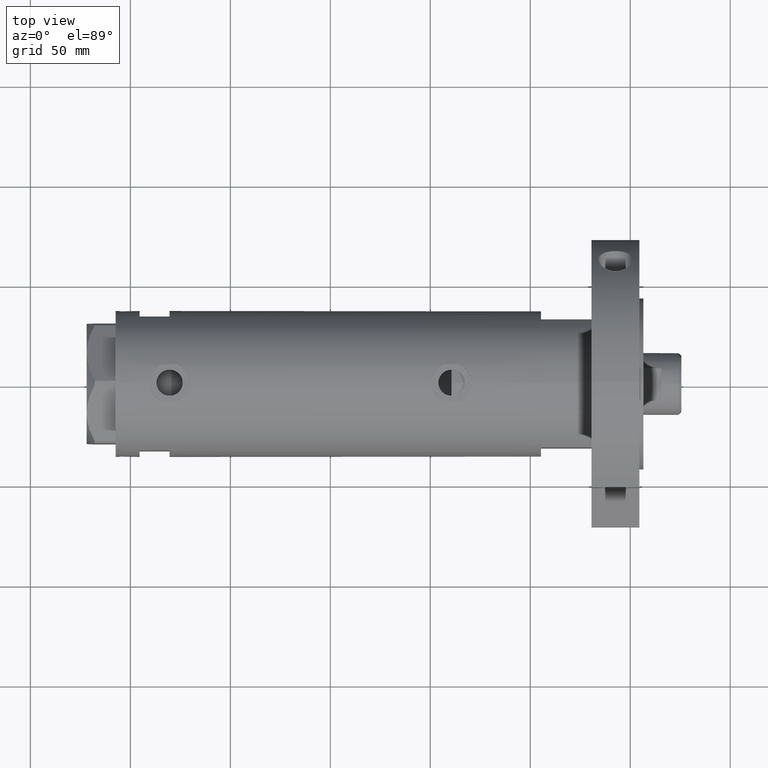
[diagram: clean part render]
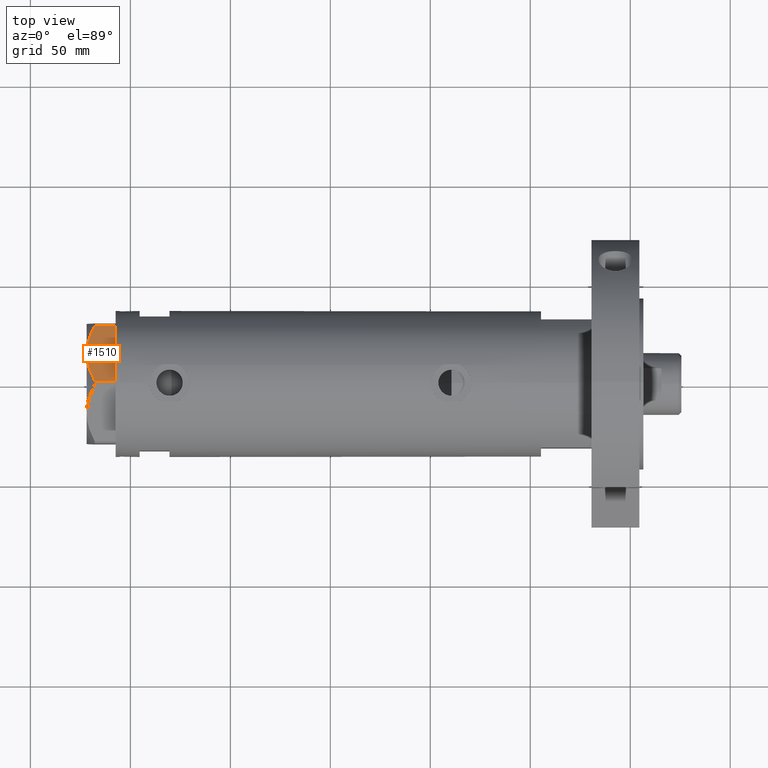
[diagram: same view with one face highlighted and labeled with its STEP entity id]
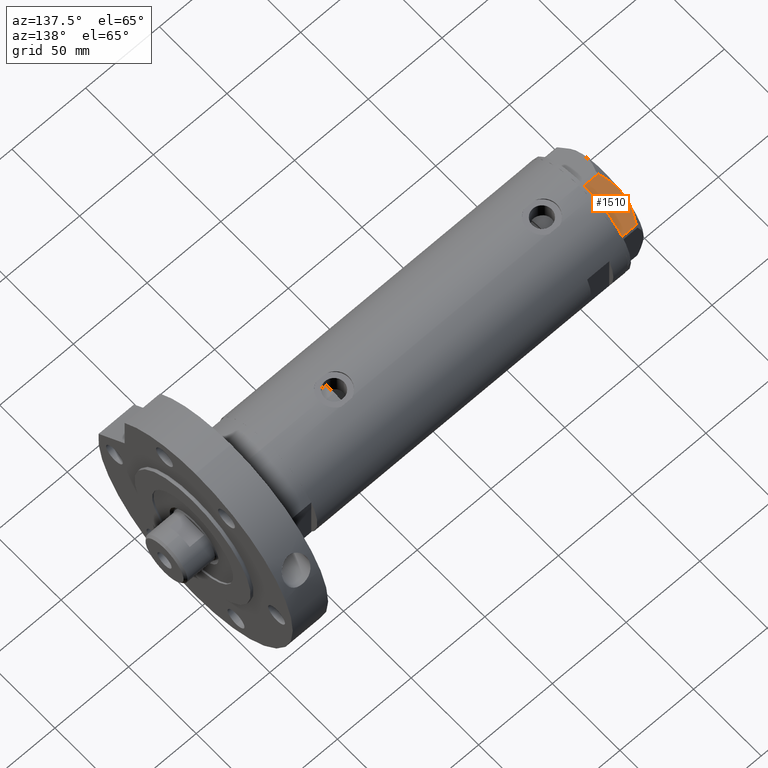
[diagram: same view with one face highlighted and labeled with its STEP entity id]
A machine part, top view. The second image highlights one B-rep face of the part: STEP entity #1510.
A second angle (auxiliary view) of the same face is appended — the face is thin or edge-on in the first view.
In plain terms, the highlighted planar face has unit normal (-0, -0.5, -0.866).
Its self-contained STEP definition (entity closure, byte-faithful):
#209 = CARTESIAN_POINT ( 'NONE',  ( 5.430403497542005020, -31.50577123026336679, 12.63511531451933045 ) ) ;
#577 = FACE_OUTER_BOUND ( 'NONE', #5027, .T. ) ;
#613 = ORIENTED_EDGE ( 'NONE', *, *, #3899, .F. ) ;
#638 = CARTESIAN_POINT ( 'NONE',  ( 14.99999999999998757, -25.98076211353316722, 14.50000000000000000 ) ) ;
#640 = DIRECTION ( 'NONE',  ( 0.8660254037844389297, 0.4999999999999996114, 0.000000000000000000 ) ) ;
#789 = CARTESIAN_POINT ( 'NONE',  ( 17.43031680809873762, -24.57761805016126644, 14.50000000000000711 ) ) ;
#801 = EDGE_CURVE ( 'NONE', #805, #1661, #5746, .T. ) ;
#805 = VERTEX_POINT ( 'NONE', #638 ) ;
#1024 = EDGE_CURVE ( 'NONE', #6825, #4140, #3928, .T. ) ;
#1101 = CARTESIAN_POINT ( 'NONE',  ( 11.92931894229900891, -27.75362064879230317, 14.29910535634587276 ) ) ;
#1294 = CARTESIAN_POINT ( 'NONE',  ( 14.99999999999998757, -25.98076211353316722, 14.50000000000000000 ) ) ;
#1310 = VECTOR ( 'NONE', #2891, 1000.000000000000000 ) ;
#1418 = CARTESIAN_POINT ( 'NONE',  ( 0.9699484522384129725, -34.08101615137761797, 10.40518423703596262 ) ) ;
#1510 = ADVANCED_FACE ( 'NONE', ( #577 ), #5756, .F. ) ;
#1536 = CARTESIAN_POINT ( 'NONE',  ( 8.929227268745744794, -29.48572438411182262, 13.71922620632299861 ) ) ;
#1661 = VERTEX_POINT ( 'NONE', #4982 ) ;
#1756 = CARTESIAN_POINT ( 'NONE',  ( 0.9699484522385750651, -34.08101615137752560, 0.000000000000000000 ) ) ;
#1773 = EDGE_CURVE ( 'NONE', #4140, #4242, #7006, .T. ) ;
#1837 = B_SPLINE_CURVE_WITH_KNOTS ( 'NONE', 3,
 ( #7345, #2111, #209, #1536, #2562, #1101, #5115, #5663, #7493, #6384 ),
 .UNSPECIFIED., .F., .F.,
 ( 4, 2, 2, 2, 4 ),
 ( 0.001230196178133386971, 0.009592363676680742274, 0.01377344742595442220, 0.01586398930059126217, 0.01795453117522810213 ),
 .UNSPECIFIED. ) ;
#1994 = CARTESIAN_POINT ( 'NONE',  ( 24.52256617298829156, -20.48290597018233328, 12.55468001512206833 ) ) ;
#2111 = CARTESIAN_POINT ( 'NONE',  ( 3.175372020745254709, -32.80771426042306160, 11.61522964162834803 ) ) ;
#2562 = CARTESIAN_POINT ( 'NONE',  ( 10.11505054612624477, -28.80108899570488035, 14.00566141361761296 ) ) ;
#2836 = ORIENTED_EDGE ( 'NONE', *, *, #1024, .T. ) ;
#2891 = DIRECTION ( 'NONE',  ( 0.000000000000000000, 0.000000000000000000, -1.000000000000000000 ) ) ;
#3130 = CARTESIAN_POINT ( 'NONE',  ( 27.92668431253404293, -18.51753744596231854, 11.01056656432685266 ) ) ;
#3697 = CARTESIAN_POINT ( 'NONE',  ( 29.03005154776141694, -17.88050807568878042, 0.000000000000000000 ) ) ;
#3702 = ORIENTED_EDGE ( 'NONE', *, *, #801, .F. ) ;
#3722 = ORIENTED_EDGE ( 'NONE', *, *, #1773, .T. ) ;
#3739 = CARTESIAN_POINT ( 'NONE',  ( 19.82219921729533141, -23.19666409734169221, 14.10092492974135503 ) ) ;
#3868 = ORIENTED_EDGE ( 'NONE', *, *, #6944, .T. ) ;
#3899 = EDGE_CURVE ( 'NONE', #6825, #805, #1837, .T. ) ;
#3928 = LINE ( 'NONE', #5725, #1310 ) ;
#4064 = CARTESIAN_POINT ( 'NONE',  ( -5.841958412462644145E-15, -34.64101615137753498, 14.50000000000000000 ) ) ;
#4140 = VERTEX_POINT ( 'NONE', #1756 ) ;
#4242 = VERTEX_POINT ( 'NONE', #3697 ) ;
#4278 = CARTESIAN_POINT ( 'NONE',  ( 23.36084816446653889, -21.15362417512481130, 12.99122625442232604 ) ) ;
#4317 = CARTESIAN_POINT ( 'NONE',  ( 25.09761465865700103, -20.15090157218441647, 12.31959434659020047 ) ) ;
#4377 = VECTOR ( 'NONE', #640, 1000.000000000000000 ) ;
#4599 = DIRECTION ( 'NONE',  ( -0.4999999999999996114, 0.8660254037844389297, 0.000000000000000000 ) ) ;
#4649 = CARTESIAN_POINT ( 'NONE',  ( 29.03005154776141694, -17.88050807568878042, 14.50000000000000000 ) ) ;
#4982 = CARTESIAN_POINT ( 'NONE',  ( 29.03005154776142049, -17.88050807568878042, 10.40518423703603901 ) ) ;
#5027 = EDGE_LOOP ( 'NONE', ( #613, #2836, #3722, #3868, #3702 ) ) ;
#5038 = VECTOR ( 'NONE', #5802, 1000.000000000000000 ) ;
#5115 = CARTESIAN_POINT ( 'NONE',  ( 12.54037849421161077, -27.40082525200466179, 14.37423503257921986 ) ) ;
#5214 = AXIS2_PLACEMENT_3D ( 'NONE', #4064, #4599, #6945 ) ;
#5421 = CARTESIAN_POINT ( 'NONE',  ( 26.80734602959450541, -19.16378770493171402, 11.56973717813738212 ) ) ;
#5454 = CARTESIAN_POINT ( 'NONE',  ( 29.03005154776142049, -17.88050807568878042, 10.40518423703603901 ) ) ;
#5663 = CARTESIAN_POINT ( 'NONE',  ( 13.77383861939864218, -26.68868671669325821, 14.47500996539162088 ) ) ;
#5725 = CARTESIAN_POINT ( 'NONE',  ( 0.9699484522385750651, -34.08101615137752560, 14.50000000000000000 ) ) ;
#5746 = B_SPLINE_CURVE_WITH_KNOTS ( 'NONE', 3,
 ( #1294, #789, #3739, #5963, #4278, #1994, #4317, #5421, #3130, #5454 ),
 .UNSPECIFIED., .F., .F.,
 ( 4, 2, 2, 2, 4 ),
 ( 0.01795453117522810213, 0.02625795893839791284, 0.02833381587919036812, 0.03040967281998282340, 0.03456138670156773396 ),
 .UNSPECIFIED. ) ;
#5756 = PLANE ( 'NONE',  #5214 ) ;
#5802 = DIRECTION ( 'NONE',  ( 0.000000000000000000, 0.000000000000000000, 1.000000000000000000 ) ) ;
#5884 = LINE ( 'NONE', #4649, #5038 ) ;
#5963 = CARTESIAN_POINT ( 'NONE',  ( 22.77266513462829067, -21.49321180573469547, 13.19311392138146566 ) ) ;
#6384 = CARTESIAN_POINT ( 'NONE',  ( 14.99999999999998757, -25.98076211353316722, 14.50000000000000000 ) ) ;
#6825 = VERTEX_POINT ( 'NONE', #1418 ) ;
#6944 = EDGE_CURVE ( 'NONE', #4242, #1661, #5884, .T. ) ;
#6945 = DIRECTION ( 'NONE',  ( -0.8660254037844389297, -0.4999999999999996114, 0.000000000000000000 ) ) ;
#6965 = CARTESIAN_POINT ( 'NONE',  ( -5.841958412462644145E-15, -34.64101615137753498, 0.000000000000000000 ) ) ;
#7006 = LINE ( 'NONE', #6965, #4377 ) ;
#7345 = CARTESIAN_POINT ( 'NONE',  ( 0.9699484522384129725, -34.08101615137761797, 10.40518423703596262 ) ) ;
#7493 = CARTESIAN_POINT ( 'NONE',  ( 14.38812268849981457, -26.33402964403881086, 14.50000000000000533 ) ) ;